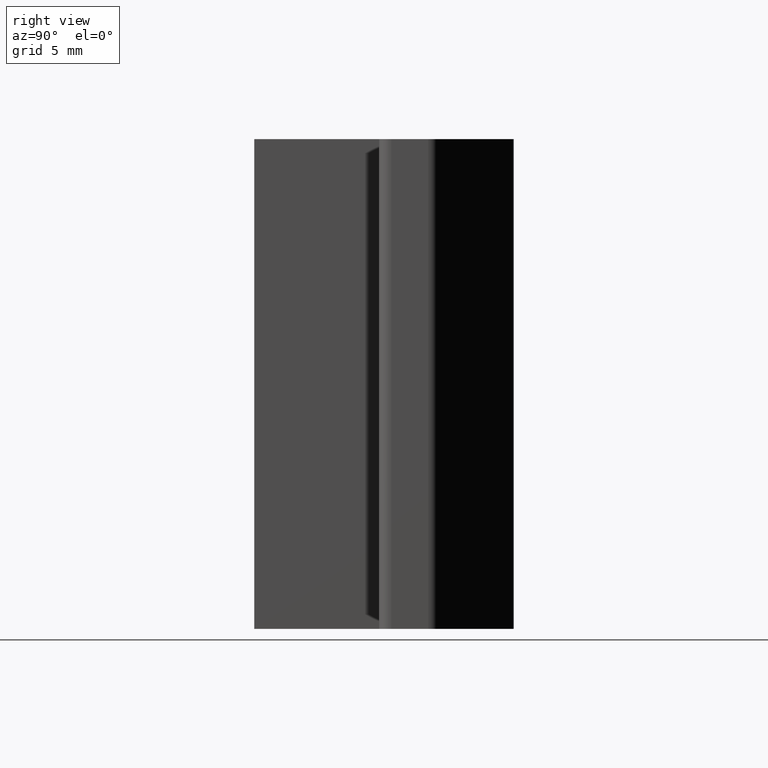
[diagram: clean part render]
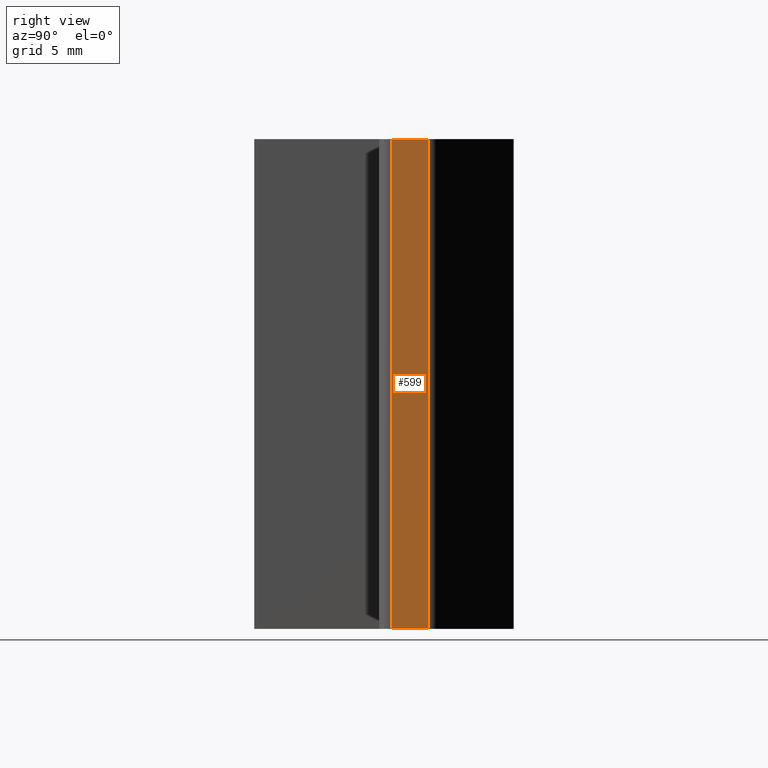
[diagram: same view with one face highlighted and labeled with its STEP entity id]
A machine part, right view. The second image highlights one B-rep face of the part: STEP entity #599.
In plain terms, the highlighted planar face has unit normal (1, 0, 0).
Its self-contained STEP definition (entity closure, byte-faithful):
#30=PLANE('',#675);
#59=FACE_OUTER_BOUND('',#90,.T.);
#90=EDGE_LOOP('',(#526,#527,#528,#529));
#133=LINE('',#1002,#188);
#154=LINE('',#1055,#209);
#155=LINE('',#1058,#210);
#156=LINE('',#1059,#211);
#188=VECTOR('',#779,10.);
#209=VECTOR('',#836,10.);
#210=VECTOR('',#839,10.);
#211=VECTOR('',#840,10.);
#278=VERTEX_POINT('',#999);
#279=VERTEX_POINT('',#1001);
#293=VERTEX_POINT('',#1053);
#294=VERTEX_POINT('',#1057);
#351=EDGE_CURVE('',#278,#279,#133,.T.);
#378=EDGE_CURVE('',#278,#293,#154,.T.);
#379=EDGE_CURVE('',#294,#293,#155,.T.);
#380=EDGE_CURVE('',#279,#294,#156,.T.);
#526=ORIENTED_EDGE('',*,*,#378,.T.);
#527=ORIENTED_EDGE('',*,*,#379,.F.);
#528=ORIENTED_EDGE('',*,*,#380,.F.);
#529=ORIENTED_EDGE('',*,*,#351,.F.);
#599=ADVANCED_FACE('',(#59),#30,.T.);
#675=AXIS2_PLACEMENT_3D('',#1056,#837,#838);
#779=DIRECTION('',(0.,-1.,0.));
#836=DIRECTION('',(0.,0.,1.));
#837=DIRECTION('center_axis',(1.,0.,0.));
#838=DIRECTION('ref_axis',(0.,1.,0.));
#839=DIRECTION('',(0.,1.,0.));
#840=DIRECTION('',(0.,0.,1.));
#999=CARTESIAN_POINT('',(9.75,2.,-10.));
#1001=CARTESIAN_POINT('',(9.75,0.5,-10.));
#1002=CARTESIAN_POINT('',(9.75,0.5,-10.));
#1053=CARTESIAN_POINT('',(9.75,2.,10.));
#1055=CARTESIAN_POINT('',(9.75,2.,0.));
#1056=CARTESIAN_POINT('Origin',(9.75,0.5,0.));
#1057=CARTESIAN_POINT('',(9.75,0.5,10.));
#1058=CARTESIAN_POINT('',(9.75,0.5,10.));
#1059=CARTESIAN_POINT('',(9.75,0.5,0.));